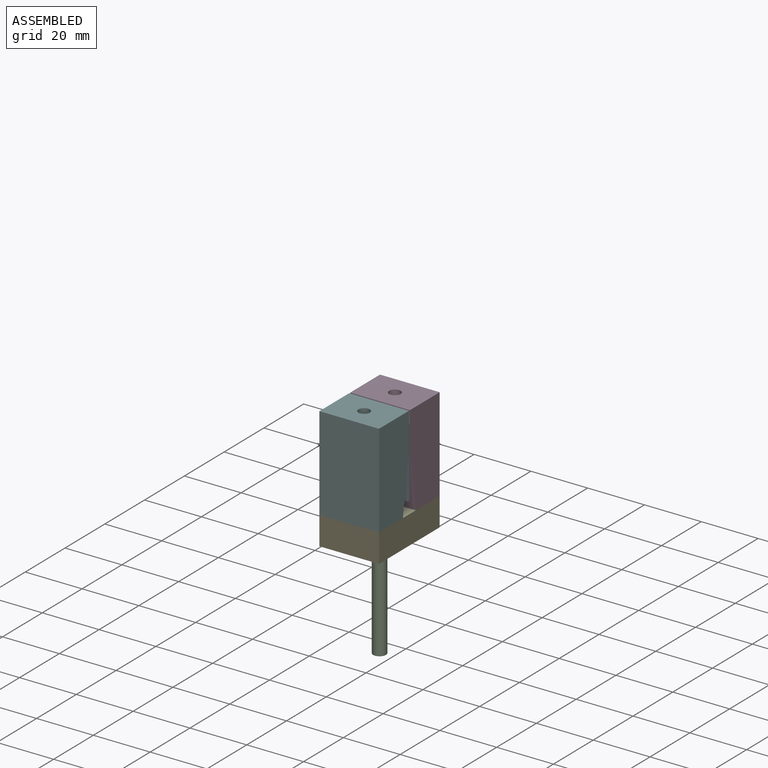
[diagram: assembled view]
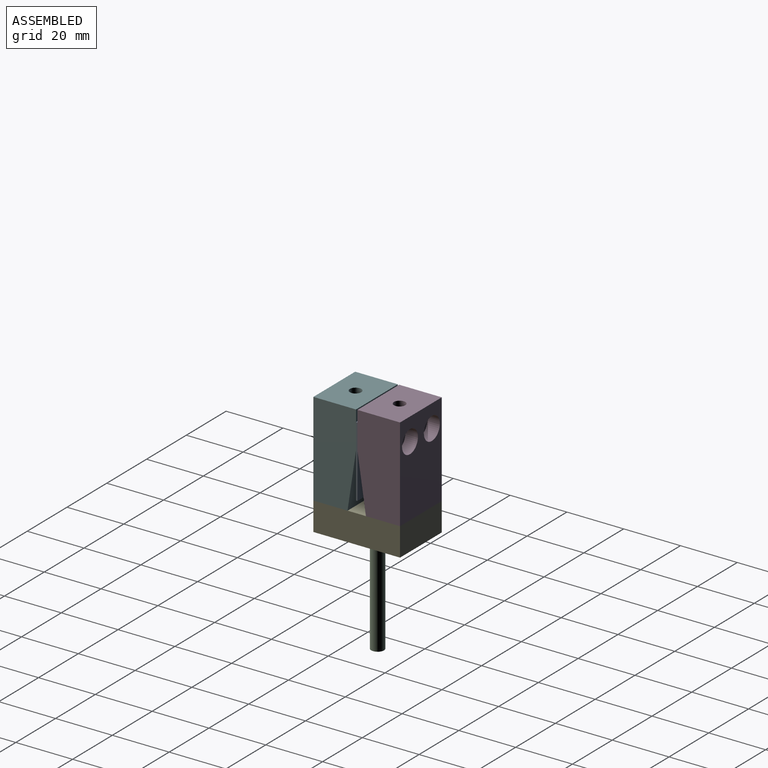
[diagram: assembled view, second angle]
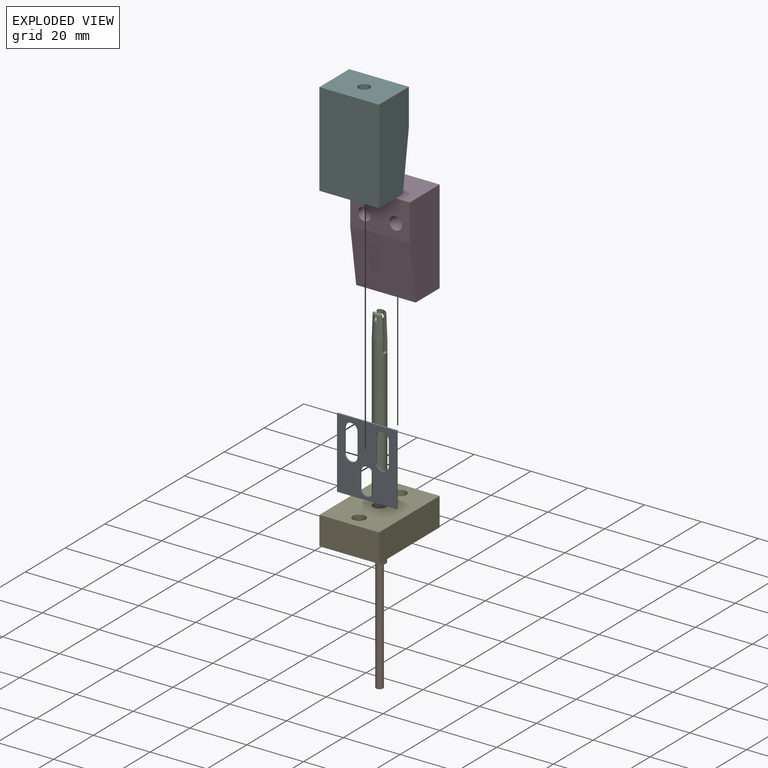
[diagram: exploded view]
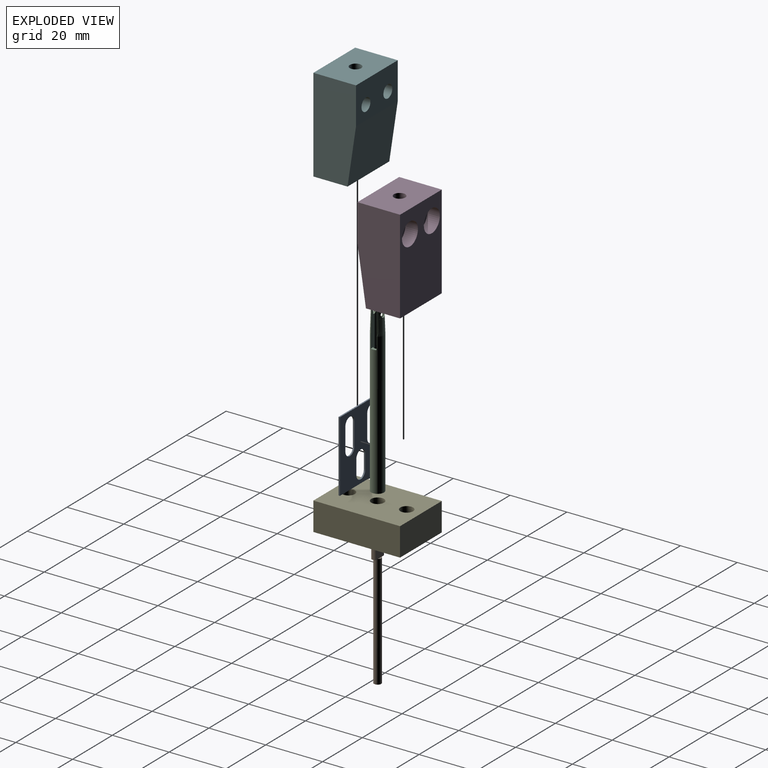
[diagram: exploded view, second angle]
ASSEMBLY  parts=6 mates=5
PART A: 18 faces, bbox 21x0.5x25 mm
  f0: plane 25x21mm, normal (0,-1,0), area 382.8mm2, adj f2,f3,f4,f5,f6,f7,f8,f9
  f1: plane 25x21mm, normal (0,1,0), area 382.8mm2, adj f2,f3,f4,f5,f6,f7,f8,f9
  f2: plane 25x0.5mm, normal (-1,0,0), area 12.5mm2, adj f0,f1,f3,f5
  f3: plane 21x0.5mm, normal (0,0,-1), area 10.5mm2, adj f0,f1,f2,f4
  f4: plane 25x0.5mm, normal (1,0,0), area 12.5mm2, adj f0,f1,f3,f5
  f5: plane 21x0.5mm, normal (0,0,1), area 10.5mm2, adj f0,f1,f2,f4
  f6: plane 8x0.5mm, normal (1,0,0), area 4mm2, adj f0,f1,f7,f9
  f7: cylinder r=2.25mm len=4.5mm, axis (0,-1,0), area 3.5mm2, adj f0,f1,f6,f8
  f8: plane 8x0.5mm, normal (-1,0,0), area 4mm2, adj f0,f1,f7,f9
  f9: extruded ~4.5x2.25mm, area 3.5mm2, adj f0,f1,f6,f8
  f10: plane 8x0.5mm, normal (-1,0,0), area 4mm2, adj f0,f1,f11,f13
  f11: extruded ~4.5x2.25mm, area 3.5mm2, adj f0,f1,f10,f12
  f12: plane 8x0.5mm, normal (1,0,0), area 4mm2, adj f0,f1,f11,f13
  f13: cylinder r=2.25mm len=4.5mm, axis (0,-1,0), area 3.5mm2, adj f0,f1,f10,f12
  f14: cylinder r=2.25mm len=4.5mm, axis (0,-1,0), area 3.5mm2, adj f0,f1,f15,f17
  f15: plane 5x0.5mm, normal (1,0,0), area 2.5mm2, adj f0,f1,f14,f16
  f16: cylinder r=2.25mm len=4.5mm, axis (0,-1,0), area 3.5mm2, adj f0,f1,f15,f17
  f17: plane 5x0.5mm, normal (-1,0,0), area 2.5mm2, adj f0,f1,f14,f16
PART B: 11 faces, bbox 4.5x45.1x2.5 mm
  f0: plane 2x0.5mm, normal (0,1,0), area 0.7mm2, adj f1,f6
  f1: cylinder r=1.25mm len=40mm, axis (0,1,0), area 314.2mm2, adj f0,f2,f3,f4,f5
  f2: plane 2.5x2.5mm, normal (0,-1,0), area 4.9mm2, adj f1
  f3: plane 2x0.5mm, normal (0,1,0), area 0.7mm2, adj f1,f8
  f4: plane 1.5x1.25mm, normal (0,-1,0), area 1.6mm2, adj f1,f6,f8,f9
  f5: plane 1.5x1.25mm, normal (0,-1,0), area 1.6mm2, adj f1,f6,f7,f8
  f6: plane 5.1x4.24mm, normal (0,0,-1), area 21.6mm2, adj f0,f4,f5,f7,f9,f10
  f7: cylinder r=2.25mm len=5.1mm, axis (0,-1,0), area 7.8mm2, adj f5,f6,f8,f10
  f8: plane 5.1x4.24mm, normal (0,0,1), area 21.6mm2, adj f3,f4,f5,f7,f9,f10
  f9: cylinder r=2.25mm len=5.1mm, axis (0,-1,0), area 7.8mm2, adj f4,f6,f8,f10
  f10: plane 4.5x1.5mm, normal (0,1,0), area 6.6mm2, adj f6,f7,f8,f9
PART C: 17 faces, bbox 4.5x58.6x4.5 mm
  f0: cylinder r=1mm len=2mm, axis (0,0,1), area 2.1mm2, adj f8,f13
  f1: plane 12.91x1.2mm, normal (0,0,1), area 13.7mm2, adj f6,f8,f9,f11,f16
  f2: plane 12.91x1.2mm, normal (0,0,1), area 13.7mm2, adj f3,f6,f8,f11,f16
  f3: plane 2x1.42mm, normal (0,1,0), area 2mm2, adj f2,f6,f10,f11
  f4: plane 12.91x1.2mm, normal (0,0,-1), area 13.7mm2, adj f5,f6,f9,f11,f15
  f5: cone r=2.25mm half-angle=1.9deg, axis (0,-1,0), area 34.4mm2, adj f4,f6,f10,f14,f15
  f6: cylinder r=2.25mm len=50mm, axis (0,1,0), area 689.1mm2, adj f1,f2,f3,f4,f5,f7,f8,f9
  f7: plane 4.5x4.5mm, normal (0,-1,0), area 10.6mm2, adj f6,f11
  f8: cone r=2.25mm half-angle=1.9deg, axis (0,-1,0), area 32.7mm2, adj f0,f1,f2,f6,f16
  f9: plane 2x1.42mm, normal (0,1,0), area 2mm2, adj f1,f4,f6,f11
  f10: plane 12.91x1.2mm, normal (0,0,-1), area 13.7mm2, adj f3,f5,f6,f11,f15
  f11: cylinder r=1.3mm len=58.61mm, axis (0,1,0), area 416.7mm2, adj f1,f2,f3,f4,f7,f9,f10,f12
  f12: cylinder r=0.7mm len=1.4mm, axis (0,0,1), area 1.6mm2, adj f11,f13
  f13: plane 2x2mm, normal (0,0,-1), area 1.6mm2, adj f0,f12
  f14: cylinder r=0.7mm len=1.4mm, axis (0,0,-1), area 3.4mm2, adj f5,f11
  f15: torus R=1.23mm, axis (0,1,0), area 3.6mm2, adj f4,f5,f10,f11
  f16: torus R=1.23mm, axis (0,1,0), area 3.6mm2, adj f1,f2,f8,f11
PART D: 17 faces, bbox 15x21x33 mm
  f0: cylinder r=2.25mm len=10.6mm, axis (-1,0,0), area 149.9mm2, adj f8,f13
  f1: cylinder r=2.25mm len=10.6mm, axis (-1,0,0), area 149.9mm2, adj f8,f11
  f2: plane 33x21mm, normal (-1,0,0), area 592.5mm2, adj f3,f4,f5,f6,f12,f14
  f3: plane 33x15mm, normal (0,-1,0), area 465.1mm2, adj f2,f5,f6,f7,f8
  f4: plane 33x15mm, normal (0,1,0), area 465.1mm2, adj f2,f5,f6,f7,f8
  f5: plane 21x12.01mm, normal (0,0,-1), area 236.3mm2, adj f2,f3,f4,f7,f9
  f6: plane 21x15mm, normal (0,0,1), area 302.4mm2, adj f2,f3,f4,f8,f15
  f7: plane 21x20mm, normal (0.99,0,-0.15), area 424.7mm2, adj f3,f4,f5,f8
  f8: plane 21x13mm, normal (1,0,0), area 241.2mm2, adj f0,f1,f3,f4,f6,f7
  f9: cylinder r=2.25mm len=10mm, axis (0,0,-1), area 141.4mm2, adj f5,f10
  f10: plane 4.5x4.5mm, normal (0,0,-1), area 15.9mm2, adj f9
  f11: plane 8x8mm, normal (-1,0,0), area 34.4mm2, adj f1,f12
  f12: cylinder r=4mm len=8mm, axis (-1,0,0), area 110.6mm2, adj f2,f11
  f13: plane 8x8mm, normal (-1,0,0), area 34.4mm2, adj f0,f14
  f14: cylinder r=4mm len=8mm, axis (-1,0,0), area 110.6mm2, adj f2,f13
  f15: cylinder r=2mm len=10mm, axis (0,0,1), area 125.7mm2, adj f6,f16
  f16: plane 4x4mm, normal (0,0,1), area 12.6mm2, adj f15
PART E: 14 faces, bbox 30.5x21x10 mm
  f0: cylinder r=2.25mm len=5.6mm, axis (0,0,-1), area 79.2mm2, adj f7,f12
  f1: cylinder r=2.25mm len=5.6mm, axis (0,0,-1), area 79.2mm2, adj f7,f10
  f2: plane 30.5x10mm, normal (0,-1,0), area 305mm2, adj f3,f5,f6,f7
  f3: plane 21x10mm, normal (-1,0,0), area 210mm2, adj f2,f4,f6,f7
  f4: plane 30.5x10mm, normal (0,1,0), area 305mm2, adj f3,f5,f6,f7
  f5: plane 21x10mm, normal (1,0,0), area 210mm2, adj f2,f4,f6,f7
  f6: plane 30.5x21mm, normal (0,0,-1), area 483.2mm2, adj f2,f3,f4,f5,f9,f11,f13
  f7: plane 30.5x21mm, normal (0,0,1), area 592.8mm2, adj f0,f1,f2,f3,f4,f5,f8
  f8: cylinder r=2.25mm len=8mm, axis (0,0,-1), area 113.1mm2, adj f7,f9
  f9: cone r=2.25mm half-angle=45deg, axis (0,0,-1), area 57.8mm2, adj f6,f8
  f10: plane 8x8mm, normal (0,0,-1), area 34.4mm2, adj f1,f11
  f11: cylinder r=4mm len=8mm, axis (0,0,-1), area 110.6mm2, adj f6,f10
  f12: plane 8x8mm, normal (0,0,-1), area 34.4mm2, adj f0,f13
  f13: cylinder r=4mm len=8mm, axis (0,0,-1), area 110.6mm2, adj f6,f12
PART F: 15 faces, bbox 15x21x33 mm
  f0: plane 21x15mm, normal (0,0,1), area 302.4mm2, adj f2,f3,f4,f6,f13
  f1: plane 21x12.01mm, normal (0,0,-1), area 236.3mm2, adj f2,f3,f4,f5,f11
  f2: plane 33x21mm, normal (1,0,0), area 693mm2, adj f0,f1,f3,f4
  f3: plane 33x15mm, normal (0,1,0), area 465.1mm2, adj f0,f1,f2,f5,f6
  f4: plane 33x15mm, normal (0,-1,0), area 465.1mm2, adj f0,f1,f2,f5,f6
  f5: plane 21x20mm, normal (-0.99,0,-0.15), area 424.7mm2, adj f1,f3,f4,f6
  f6: plane 21x13mm, normal (-1,0,0), area 241.2mm2, adj f0,f3,f4,f5,f7,f9
  f7: cylinder r=2.25mm len=10mm, axis (-1,0,0), area 141.4mm2, adj f6,f8
  f8: plane 4.5x4.5mm, normal (-1,0,0), area 15.9mm2, adj f7
  f9: cylinder r=2.25mm len=10mm, axis (-1,0,0), area 141.4mm2, adj f6,f10
  f10: plane 4.5x4.5mm, normal (-1,0,0), area 15.9mm2, adj f9
  f11: cylinder r=2.25mm len=10mm, axis (0,0,-1), area 141.4mm2, adj f1,f12
  f12: plane 4.5x4.5mm, normal (0,0,-1), area 15.9mm2, adj f11
  f13: cylinder r=2mm len=10mm, axis (0,0,1), area 125.7mm2, adj f0,f14
  f14: plane 4x4mm, normal (0,0,1), area 12.6mm2, adj f13
PLACE A rot(axis=(1,0,0),180deg) t=(71.42,46.82,42.49)mm
PLACE B rot(axis=(1,0,0),90deg) t=(73.81,47.07,22.29)mm
PLACE C rot(axis=(1,0,0),90deg) t=(73.81,47.07,26.49)mm
PLACE D rot(axis=(0,0,-1),90deg) t=(73.81,47.07,23.49)mm fixed
PLACE E rot(axis=(0,0,-1),90deg) t=(73.81,47.07,23.49)mm
PLACE F rot(axis=(0,0,-1),90deg) t=(73.81,47.07,23.49)mm fixed
MATE slider C.f15 <-> E.f8  axis (0,0,1) through (73.81,47.07,35.1)mm
MATE fastened D.f9 <-> E.f0  axis (0,0,-1) through (73.81,57.32,23.49)mm
MATE fastened D.f0 <-> A.f13  axis (0,-1,0) through (68.31,47.32,48.49)mm
MATE slider B.f1 <-> C.f15  axis (0,0,-1) through (73.81,47.07,-17.71)mm
MATE fastened F.f11 <-> E.f1  axis (0,0,-1) through (73.81,36.82,23.49)mm
